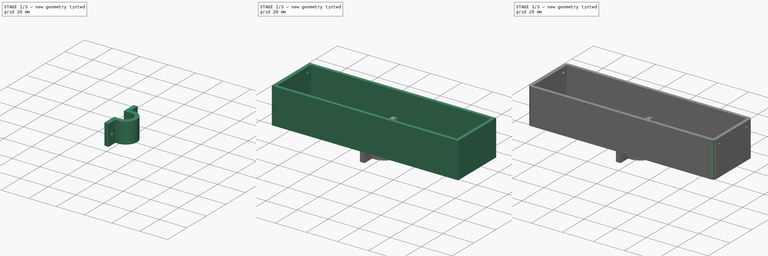
[diagram: build sequence overview — one tinted view per stage of 3, left to right]
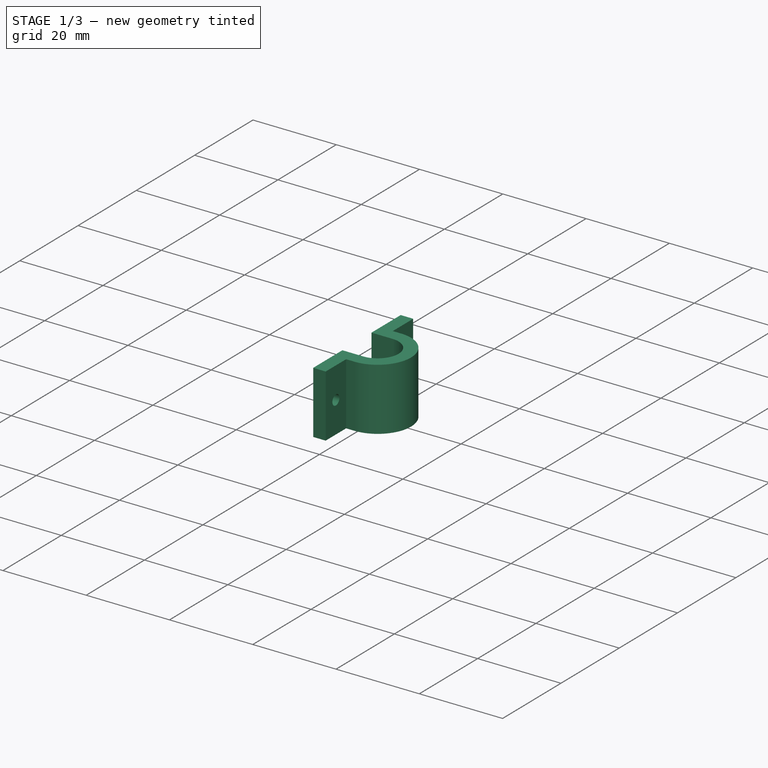
[diagram: stage 1 of 3 — iso view after this stage's code; geometry added in this stage tinted green]
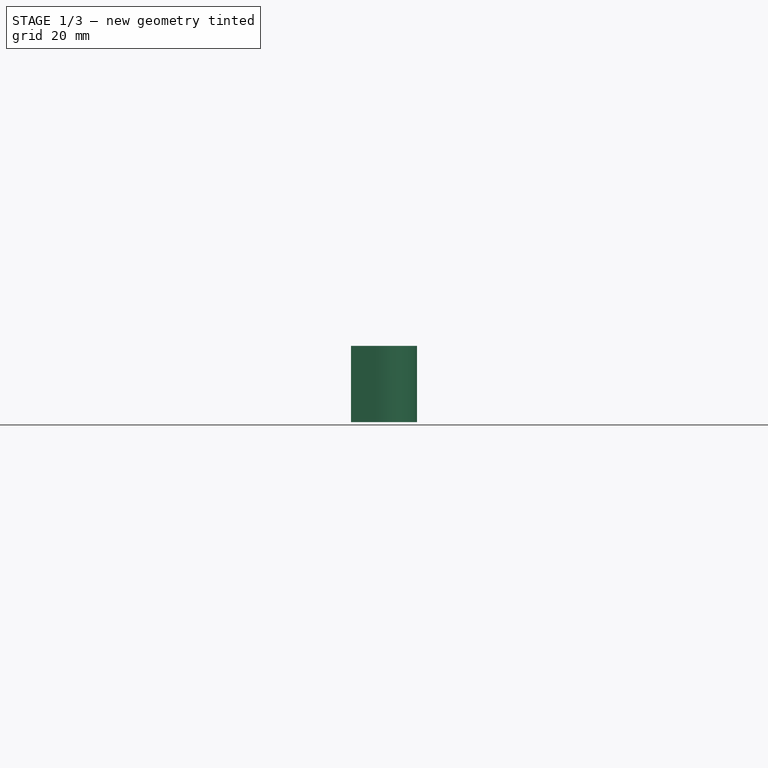
[diagram: stage 1 of 3 — front view after this stage's code; geometry added in this stage tinted green]
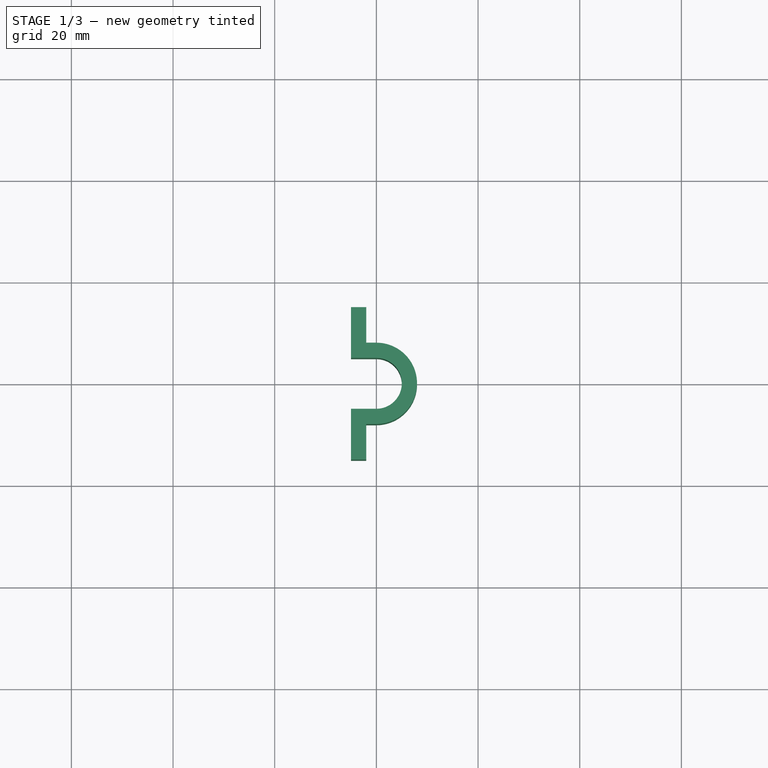
[diagram: stage 1 of 3 — top view after this stage's code; geometry added in this stage tinted green]
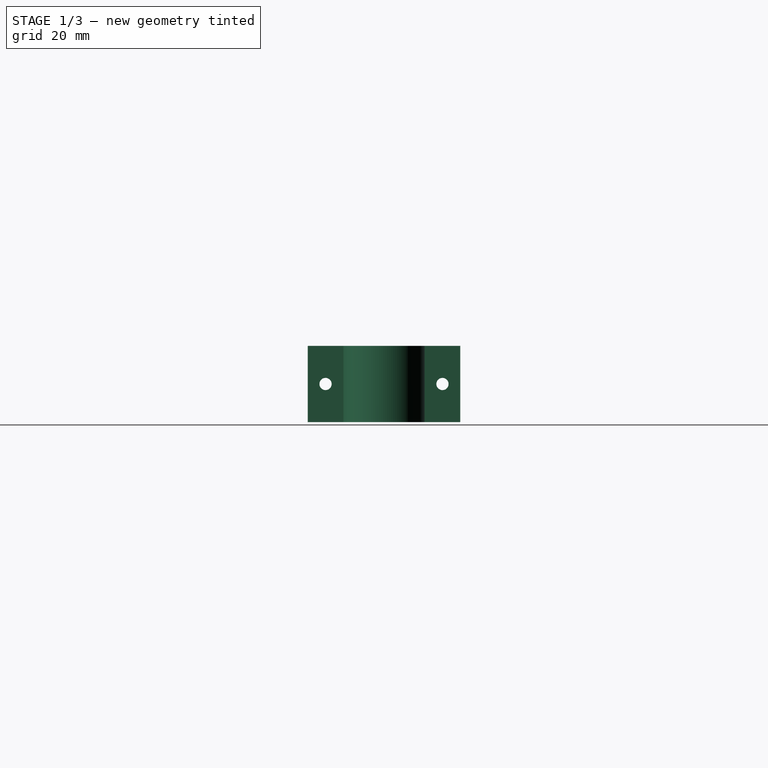
[diagram: stage 1 of 3 — right view after this stage's code; geometry added in this stage tinted green]
FCSTD DOCUMENT  (FreeCAD 1.0R39109 (Git))
Label: bike speeder box
License: All rights reserved
LicenseURL: https://en.wikipedia.org/wiki/All_rights_reserved
objects: Sketcher::SketchObject×6, PartDesign::Pad×3, PartDesign::Pocket×3, PartDesign::Body×2, PartDesign::Fillet×1
note: 35 computed .brp shape members not serialized (recipe doc carries the construction recipe); baked Part::Feature solids carry a one-line shape summary decoded from their .brp

FEATURE [PartDesign::Body] Body
  AllowCompound = false
  Group = -> [Sketch,Pad,Sketch001,Pad001,Sketch002,Pocket,Sketch003,Pocket001,Fillet]
  Origin = -> Origin
  Tip = -> Fillet
FEATURE [Sketcher::SketchObject] Sketch004
  ArcFitTolerance = 1e-06
  AttachmentSupport = -> [XY_Plane001]
  FullyConstrained = true
  MakeInternals = false
  MapMode = 5
  sketch-geometry (12):
    g0: ArcOfCircle CenterX=0 CenterY=0 CenterZ=0 NormalX=0 NormalY=0 NormalZ=1 AngleXU=0 Radius=5 StartAngle=4.71239 EndAngle=7.85398
    g1: ArcOfCircle CenterX=0 CenterY=0 CenterZ=0 NormalX=0 NormalY=0 NormalZ=1 AngleXU=0 Radius=8 StartAngle=4.71239 EndAngle=7.85398
    g2: LineSegment StartX=-2 StartY=-8 StartZ=0 EndX=-2 EndY=-15 EndZ=0
    g3: LineSegment StartX=-2 StartY=-15 StartZ=0 EndX=-5 EndY=-15 EndZ=0
    g4: LineSegment StartX=-5 StartY=-15 StartZ=0 EndX=-5 EndY=-5 EndZ=0
    g5: LineSegment StartX=-5 StartY=-5 StartZ=0 EndX=-9e-16 EndY=-5 EndZ=0
    g6: LineSegment StartX=0 StartY=8 StartZ=0 EndX=-2 EndY=8 EndZ=0
    g7: LineSegment StartX=-2 StartY=8 StartZ=0 EndX=-2 EndY=15 EndZ=0
    g8: LineSegment StartX=-2 StartY=15 StartZ=0 EndX=-5 EndY=15 EndZ=0
    g9: LineSegment StartX=-5 StartY=15 StartZ=0 EndX=-5 EndY=5 EndZ=0
    g10: LineSegment StartX=-5 StartY=5 StartZ=0 EndX=1.8e-15 EndY=5 EndZ=0
    g11: LineSegment StartX=0 StartY=-8 StartZ=0 EndX=-2 EndY=-8 EndZ=0
  constraints (31):
    c: Coincident(g0,g-1)
    c: PointOnObject(g0,g-2)
    c: PointOnObject(g0,g-2)
    c: Coincident(g1,g0)
    c: Diameter(g0) = 10
    c: PointOnObject(g1,g-2)
    c: DistanceY(g0,g1) = 3
    c: Coincident(g2,g3)
    c: Coincident(g3,g4)
    c: Coincident(g4,g5)
    c: Coincident(g5,g0)
    c: Tangent(g1,g6) = -1.5708
    c: Coincident(g6,g7)
    c: Coincident(g7,g8)
    c: Coincident(g8,g9)
    c: Vertical(g9)
    c: Coincident(g9,g10)
    c: Coincident(g10,g0)
    c: Horizontal(g10)
    c: Symmetric(g2,g6,g-1)
    c: Symmetric(g7,g2,g-1)
    c: Vertical(g7)
    c: Horizontal(g8)
    c: Symmetric(g8,g3,g-1)
    c: Symmetric(g4,g9,g-1)
    c: DistanceX(g10,g10) = 5
    c: DistanceX(g8,g8) = 3
    c: DistanceY(g3,g8) = 30
    c: Coincident(g11,g1)
    c: Coincident(g11,g2)
    c: PointOnObject(g1,g-2)
FEATURE [PartDesign::Pad] Pad002
  Direction = (0,0,1)
  Length = 15
  Length2 = 10
  Midplane = true
  Profile = -> Sketch004
  ReferenceAxis = -> Sketch004 [N_Axis]
  Refine = true
  Suppressed = false
  Type = 0
FEATURE [Sketcher::SketchObject] Sketch005
  ArcFitTolerance = 1e-06
  AttachmentSupport = -> [YZ_Plane001]
  FullyConstrained = true
  MakeInternals = false
  MapMode = 5
  Placement = pos=(0,0,0) rot=(0.57735,0.57735,0.57735;2.0944rad)
  sketch-geometry (2):
    g0: Circle CenterX=-11.5 CenterY=0 CenterZ=0 NormalX=0 NormalY=0 NormalZ=1 AngleXU=0 Radius=1.2
    g1: Circle CenterX=11.5 CenterY=0 CenterZ=0 NormalX=0 NormalY=0 NormalZ=1 AngleXU=0 Radius=1.2
  constraints (5):
    c: Equal(g1,g0)
    c: Symmetric(g0,g1,g-2)
    c: DistanceX(g0,g1) = 23
    c: Diameter(g0) = 2.4
    c: PointOnObject(g0,g-1)
FEATURE [PartDesign::Pocket] Pocket002
  BaseFeature = -> Pad002
  Direction = (-1,0,0)
  Length = 5
  Length2 = 5
  Profile = -> Sketch005
  ReferenceAxis = -> Sketch005 [N_Axis]
  Refine = true
  Suppressed = false
  Type = 1
FEATURE [PartDesign::Body] Body001
  AllowCompound = false
  Group = -> [Sketch004,Pad002,Sketch005,Pocket002]
  Origin = -> Origin001
  Tip = -> Pocket002
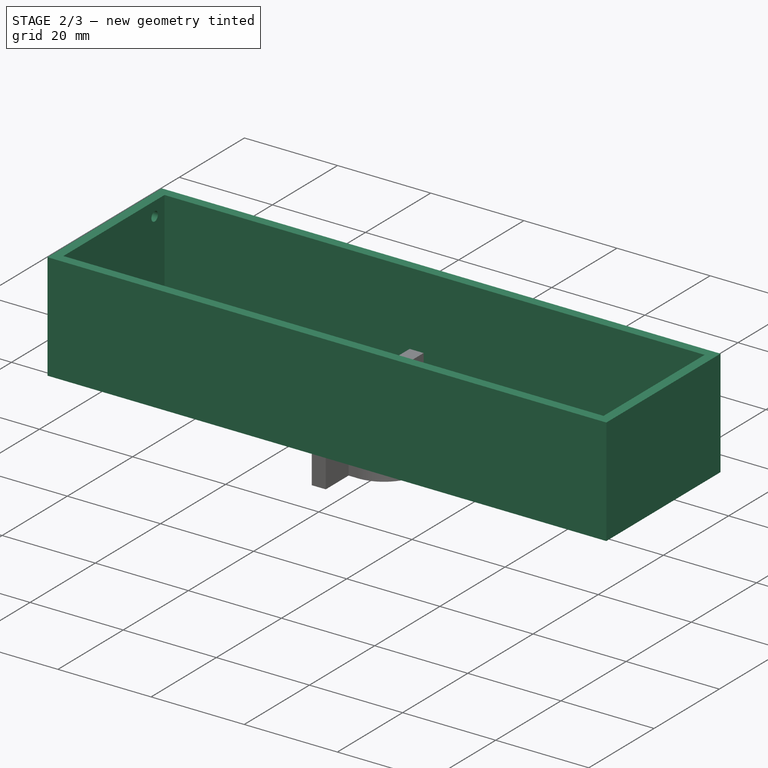
[diagram: stage 2 of 3 — iso view after this stage's code; geometry added in this stage tinted green]
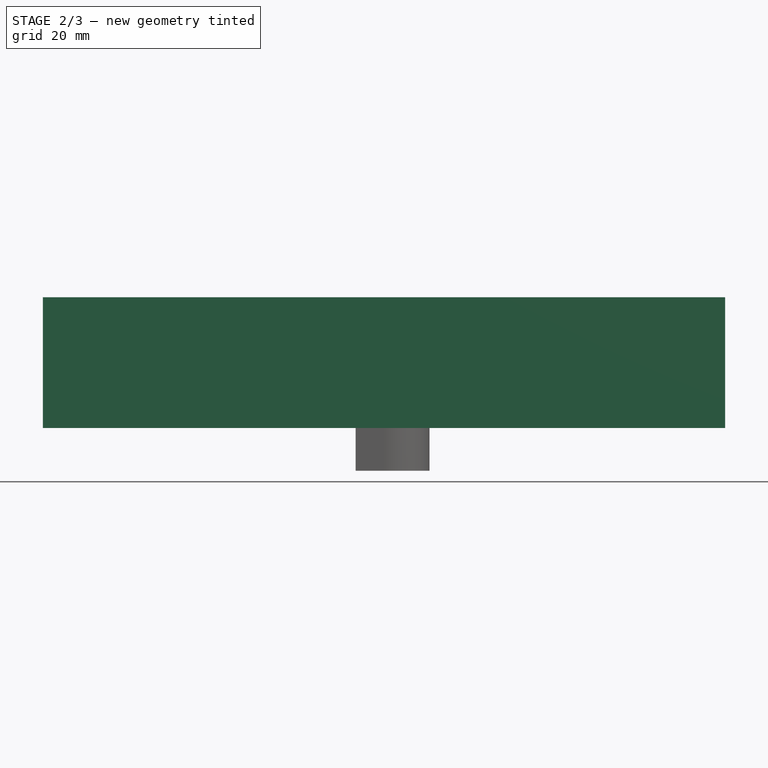
[diagram: stage 2 of 3 — front view after this stage's code; geometry added in this stage tinted green]
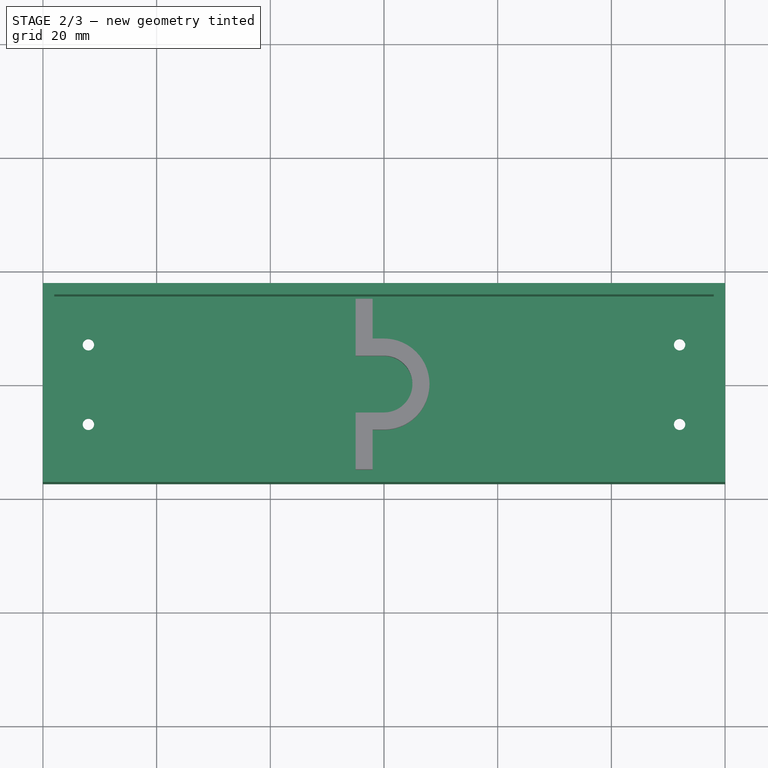
[diagram: stage 2 of 3 — top view after this stage's code; geometry added in this stage tinted green]
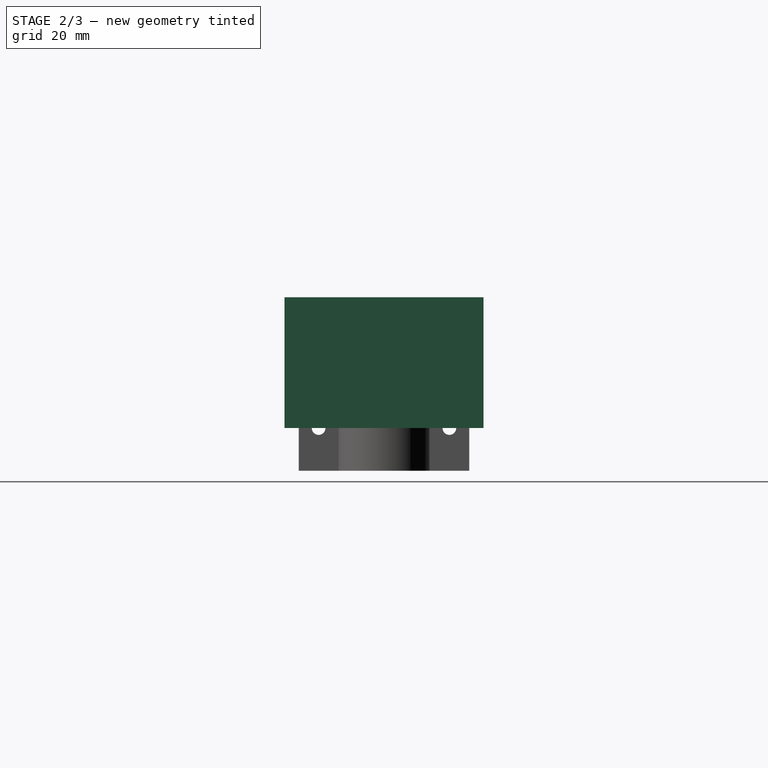
[diagram: stage 2 of 3 — right view after this stage's code; geometry added in this stage tinted green]
FEATURE [Sketcher::SketchObject] Sketch
  ArcFitTolerance = 1e-06
  AttachmentSupport = -> [XY_Plane]
  FullyConstrained = true
  MakeInternals = false
  MapMode = 5
  sketch-geometry (9):
    g0: LineSegment StartX=-60 StartY=17.5 StartZ=0 EndX=-60 EndY=-17.5 EndZ=0
    g1: LineSegment StartX=-60 StartY=-17.5 StartZ=0 EndX=60 EndY=-17.5 EndZ=0
    g2: LineSegment StartX=60 StartY=-17.5 StartZ=0 EndX=60 EndY=17.5 EndZ=0
    g3: LineSegment StartX=60 StartY=17.5 StartZ=0 EndX=-60 EndY=17.5 EndZ=0
    g4: GeomPoint [constr] X=0 Y=0 Z=0
    g5: Circle CenterX=-52 CenterY=7 CenterZ=0 NormalX=0 NormalY=0 NormalZ=1 AngleXU=0 Radius=1
    g6: Circle CenterX=-52 CenterY=-7 CenterZ=0 NormalX=0 NormalY=0 NormalZ=1 AngleXU=0 Radius=1
    g7: Circle CenterX=52 CenterY=7 CenterZ=0 NormalX=0 NormalY=0 NormalZ=1 AngleXU=0 Radius=1
    g8: Circle CenterX=52 CenterY=-7 CenterZ=0 NormalX=0 NormalY=0 NormalZ=1 AngleXU=0 Radius=1
  constraints (22):
    c: Coincident(g0,g1)
    c: Coincident(g1,g2)
    c: Coincident(g2,g3)
    c: Coincident(g3,g0)
    c: Vertical(g0)
    c: Vertical(g2)
    c: Horizontal(g1)
    c: Horizontal(g3)
    c: Symmetric(g2,g0,g4)
    c: Coincident(g4,g-1)
    c: DistanceX(g3,g3) = 120
    c: DistanceY(g0,g0) = 35
    c: Equal(g6,g5)
    c: Equal(g5,g7)
    c: Equal(g7,g8)
    c: Symmetric(g6,g5,g-1)
    c: Horizontal(g7,g5)
    c: Symmetric(g8,g7,g-1)
    c: DistanceY(g6,g5) = 14
    c: Diameter(g5) = 2
    c: DistanceX(g0,g5) = 8
    c: DistanceX(g7,g2) = 8
FEATURE [PartDesign::Pad] Pad
  Direction = (0,0,1)
  Length = 2
  Length2 = 10
  Profile = -> Sketch
  ReferenceAxis = -> Sketch [N_Axis]
  Refine = true
  Suppressed = false
  Type = 0
FEATURE [Sketcher::SketchObject] Sketch001
  ArcFitTolerance = 1e-06
  AttachmentSupport = -> [XY_Plane]
  ExternalGeometry = -> [Pad]
  FullyConstrained = true
  MakeInternals = false
  MapMode = 5
  sketch-geometry (8):
    g0: LineSegment StartX=-60 StartY=17.5 StartZ=0 EndX=-60 EndY=-17.5 EndZ=0
    g1: LineSegment StartX=-60 StartY=-17.5 StartZ=0 EndX=60 EndY=-17.5 EndZ=0
    g2: LineSegment StartX=60 StartY=-17.5 StartZ=0 EndX=60 EndY=17.5 EndZ=0
    g3: LineSegment StartX=60 StartY=17.5 StartZ=0 EndX=-60 EndY=17.5 EndZ=0
    g4: LineSegment StartX=-58 StartY=15.5 StartZ=0 EndX=-58 EndY=-15.5 EndZ=0
    g5: LineSegment StartX=-58 StartY=-15.5 StartZ=0 EndX=58 EndY=-15.5 EndZ=0
    g6: LineSegment StartX=58 StartY=-15.5 StartZ=0 EndX=58 EndY=15.5 EndZ=0
    g7: LineSegment StartX=58 StartY=15.5 StartZ=0 EndX=-58 EndY=15.5 EndZ=0
  constraints (22):
    c: Coincident(g0,g1)
    c: Coincident(g1,g2)
    c: Coincident(g2,g3)
    c: Coincident(g3,g0)
    c: Vertical(g0)
    c: Vertical(g2)
    c: Horizontal(g1)
    c: Horizontal(g3)
    c: Coincident(g0,g-3)
    c: Coincident(g1,g-4)
    c: Coincident(g4,g5)
    c: Coincident(g5,g6)
    c: Coincident(g6,g7)
    c: Coincident(g7,g4)
    c: Vertical(g4)
    c: Vertical(g6)
    c: Horizontal(g5)
    c: Horizontal(g7)
    c: DistanceY(g4,g0) = 2
    c: DistanceX(g0,g4) = 2
    c: DistanceX(g6,g2) = 2
    c: DistanceY(g0,g4) = 2
FEATURE [PartDesign::Pad] Pad001
  BaseFeature = -> Pad
  Direction = (0,0,1)
  Length = 23
  Length2 = 10
  Profile = -> Sketch001
  ReferenceAxis = -> Sketch001 [N_Axis]
  Refine = true
  Suppressed = false
  Type = 0
FEATURE [Sketcher::SketchObject] Sketch002
  ArcFitTolerance = 1e-06
  AttachmentSupport = -> [YZ_Plane]
  FullyConstrained = true
  MakeInternals = false
  MapMode = 5
  Placement = pos=(0,0,0) rot=(0.57735,0.57735,0.57735;2.0944rad)
  sketch-geometry (6):
    g0: LineSegment StartX=-3 StartY=4 StartZ=0 EndX=-3 EndY=2 EndZ=0
    g1: LineSegment StartX=-3 StartY=2 StartZ=0 EndX=3 EndY=2 EndZ=0
    g2: LineSegment StartX=3 StartY=2 StartZ=0 EndX=3 EndY=4 EndZ=0
    g3: LineSegment StartX=3 StartY=4 StartZ=0 EndX=-3 EndY=4 EndZ=0
    g4: Circle CenterX=-12.5 CenterY=20 CenterZ=0 NormalX=0 NormalY=0 NormalZ=1 AngleXU=0 Radius=1
    g5: Circle CenterX=12.5 CenterY=20 CenterZ=0 NormalX=0 NormalY=0 NormalZ=1 AngleXU=0 Radius=1
  constraints (16):
    c: Coincident(g0,g1)
    c: Coincident(g1,g2)
    c: Coincident(g2,g3)
    c: Horizontal(g3)
    c: Vertical(g2)
    c: Vertical(g0)
    c: Symmetric(g0,g1,g-2)
    c: DistanceY(g0,g0) = 2
    c: DistanceY(g-1,g0) = 2
    c: DistanceX(g1,g1) = 6
    c: Symmetric(g4,g5,g-2)
    c: Equal(g4,g5)
    c: Diameter(g4) = 2
    c: DistanceX(g4,g5) = 25
    c: DistanceY(g-1,g5) = 20
    c: Coincident(g3,g0)
FEATURE [PartDesign::Pocket] Pocket
  BaseFeature = -> Pad001
  Direction = (-1,0,0)
  Length = 5
  Length2 = 5
  Profile = -> Sketch002
  ReferenceAxis = -> Sketch002 [N_Axis]
  Refine = true
  Suppressed = false
  Type = 1
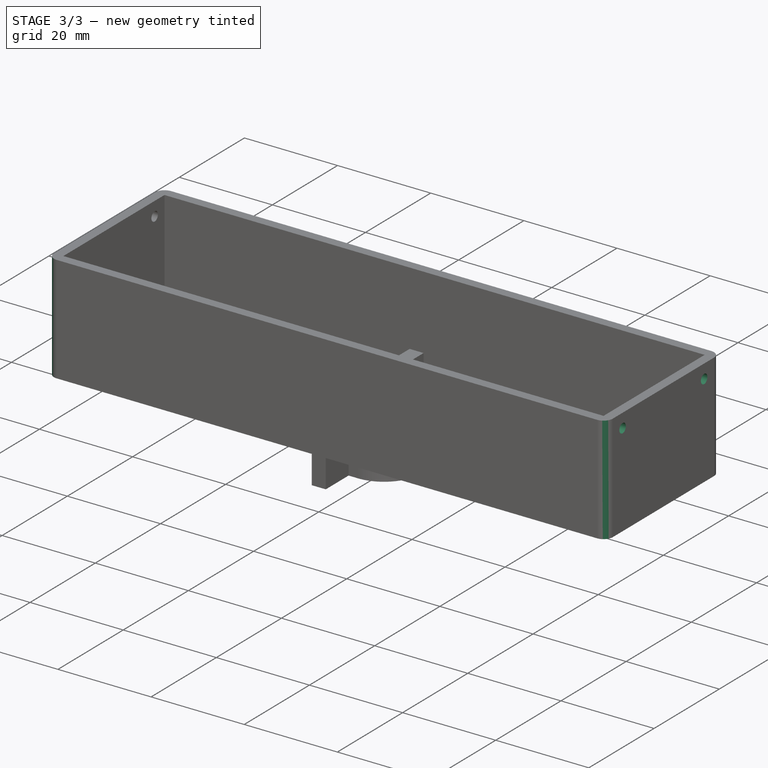
[diagram: stage 3 of 3 — iso view after this stage's code; geometry added in this stage tinted green]
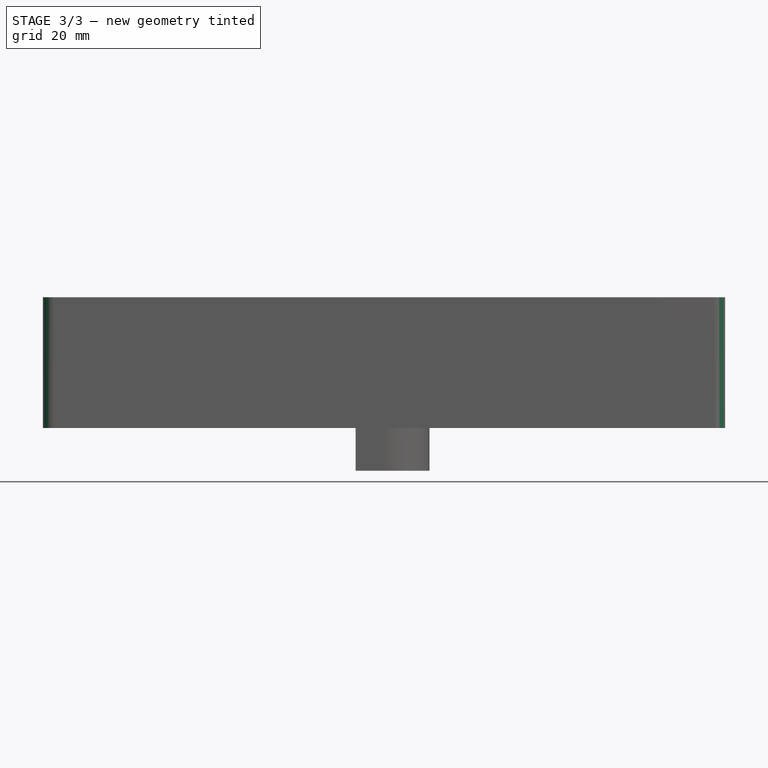
[diagram: stage 3 of 3 — front view after this stage's code; geometry added in this stage tinted green]
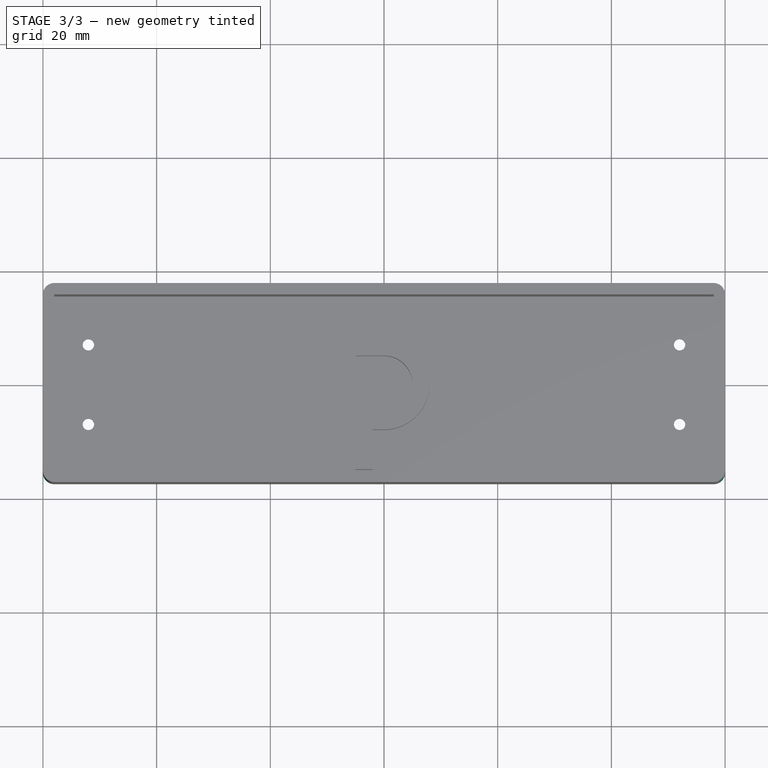
[diagram: stage 3 of 3 — top view after this stage's code; geometry added in this stage tinted green]
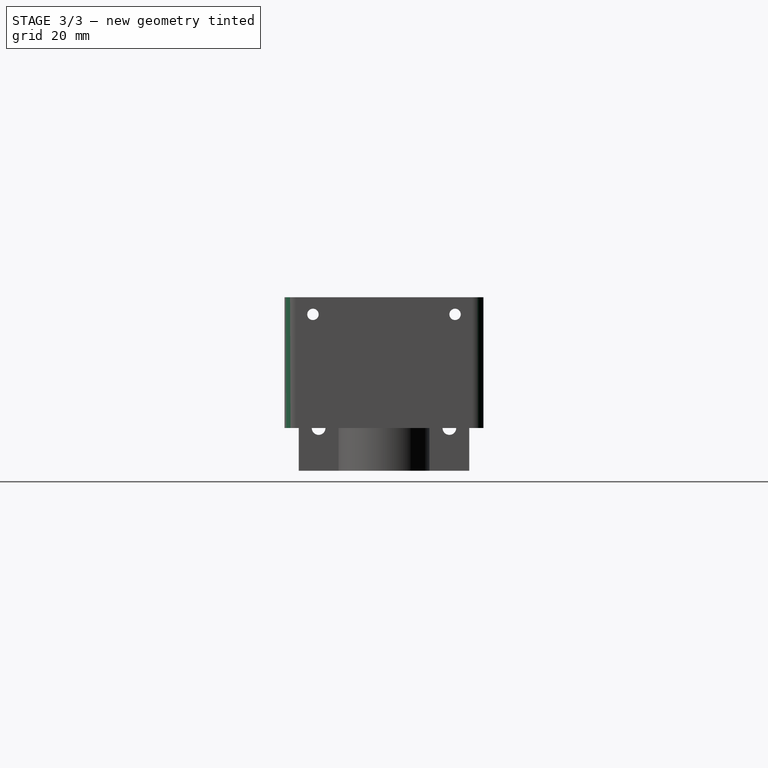
[diagram: stage 3 of 3 — right view after this stage's code; geometry added in this stage tinted green]
FEATURE [Sketcher::SketchObject] Sketch003
  ArcFitTolerance = 1e-06
  AttachmentSupport = -> [YZ_Plane]
  FullyConstrained = true
  MakeInternals = false
  MapMode = 5
  Placement = pos=(0,0,0) rot=(0.57735,0.57735,0.57735;2.0944rad)
  sketch-geometry (2):
    g0: Circle CenterX=-12.5 CenterY=20 CenterZ=0 NormalX=0 NormalY=0 NormalZ=1 AngleXU=0 Radius=1
    g1: Circle CenterX=12.5 CenterY=20 CenterZ=0 NormalX=0 NormalY=0 NormalZ=1 AngleXU=0 Radius=1
  constraints (5):
    c: Equal(g0,g1)
    c: Diameter(g0) = 2
    c: Symmetric(g0,g1,g-2)
    c: DistanceX(g0,g1) = 25
    c: DistanceY(g-1,g0) = 20
FEATURE [PartDesign::Pocket] Pocket001
  BaseFeature = -> Pocket
  Direction = (-1,0,0)
  Length = 5
  Length2 = 5
  Profile = -> Sketch003
  ReferenceAxis = -> Sketch003 [N_Axis]
  Refine = true
  Reversed = true
  Suppressed = false
  Type = 1
FEATURE [PartDesign::Fillet] Fillet
  Base = -> Pocket001 [Edge10,Edge11,Edge19,Edge21]
  BaseFeature = -> Pocket001
  Radius = 2
  Refine = true
  SupportTransform = false
  Suppressed = false
  UseAllEdges = false
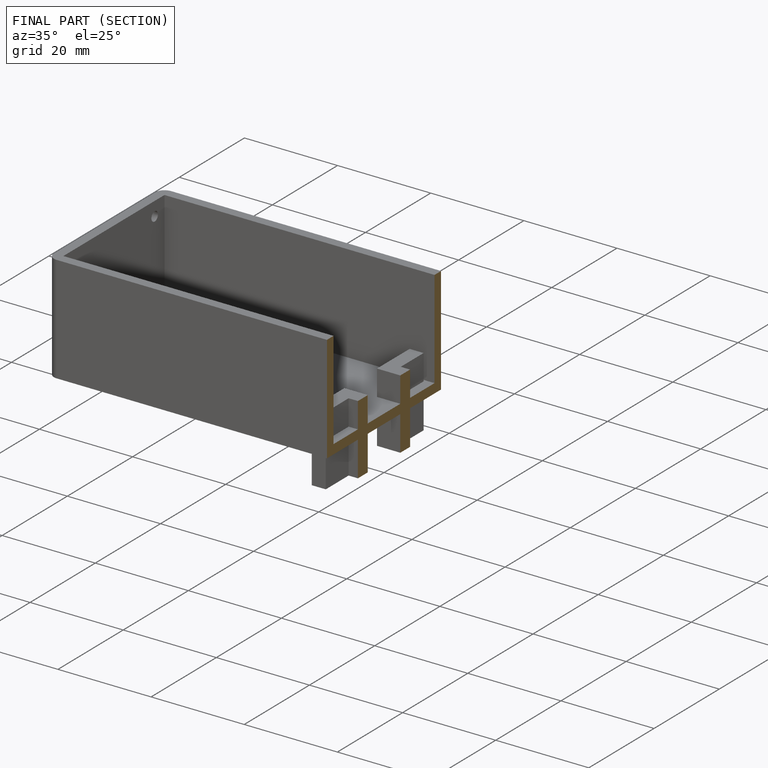
[diagram: finished part — half-section view (interior)]
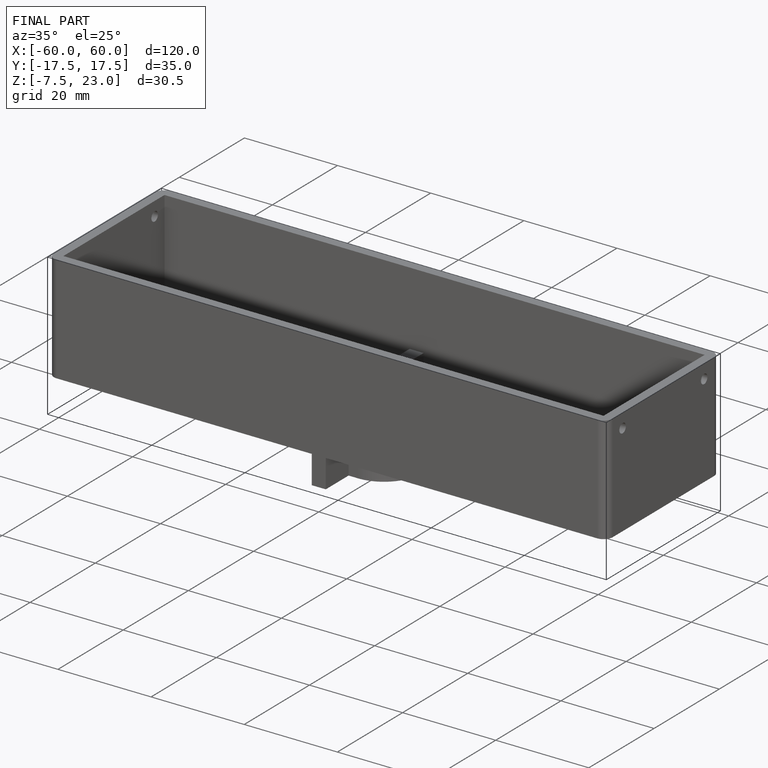
[diagram: finished part — iso view with bounding-box wireframe]
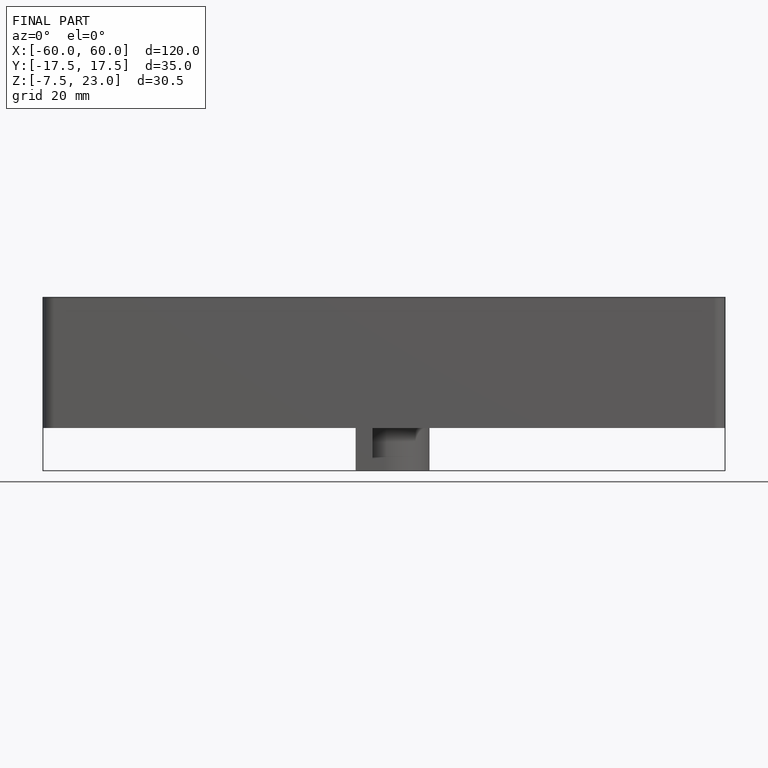
[diagram: finished part — front view with bounding-box wireframe]
